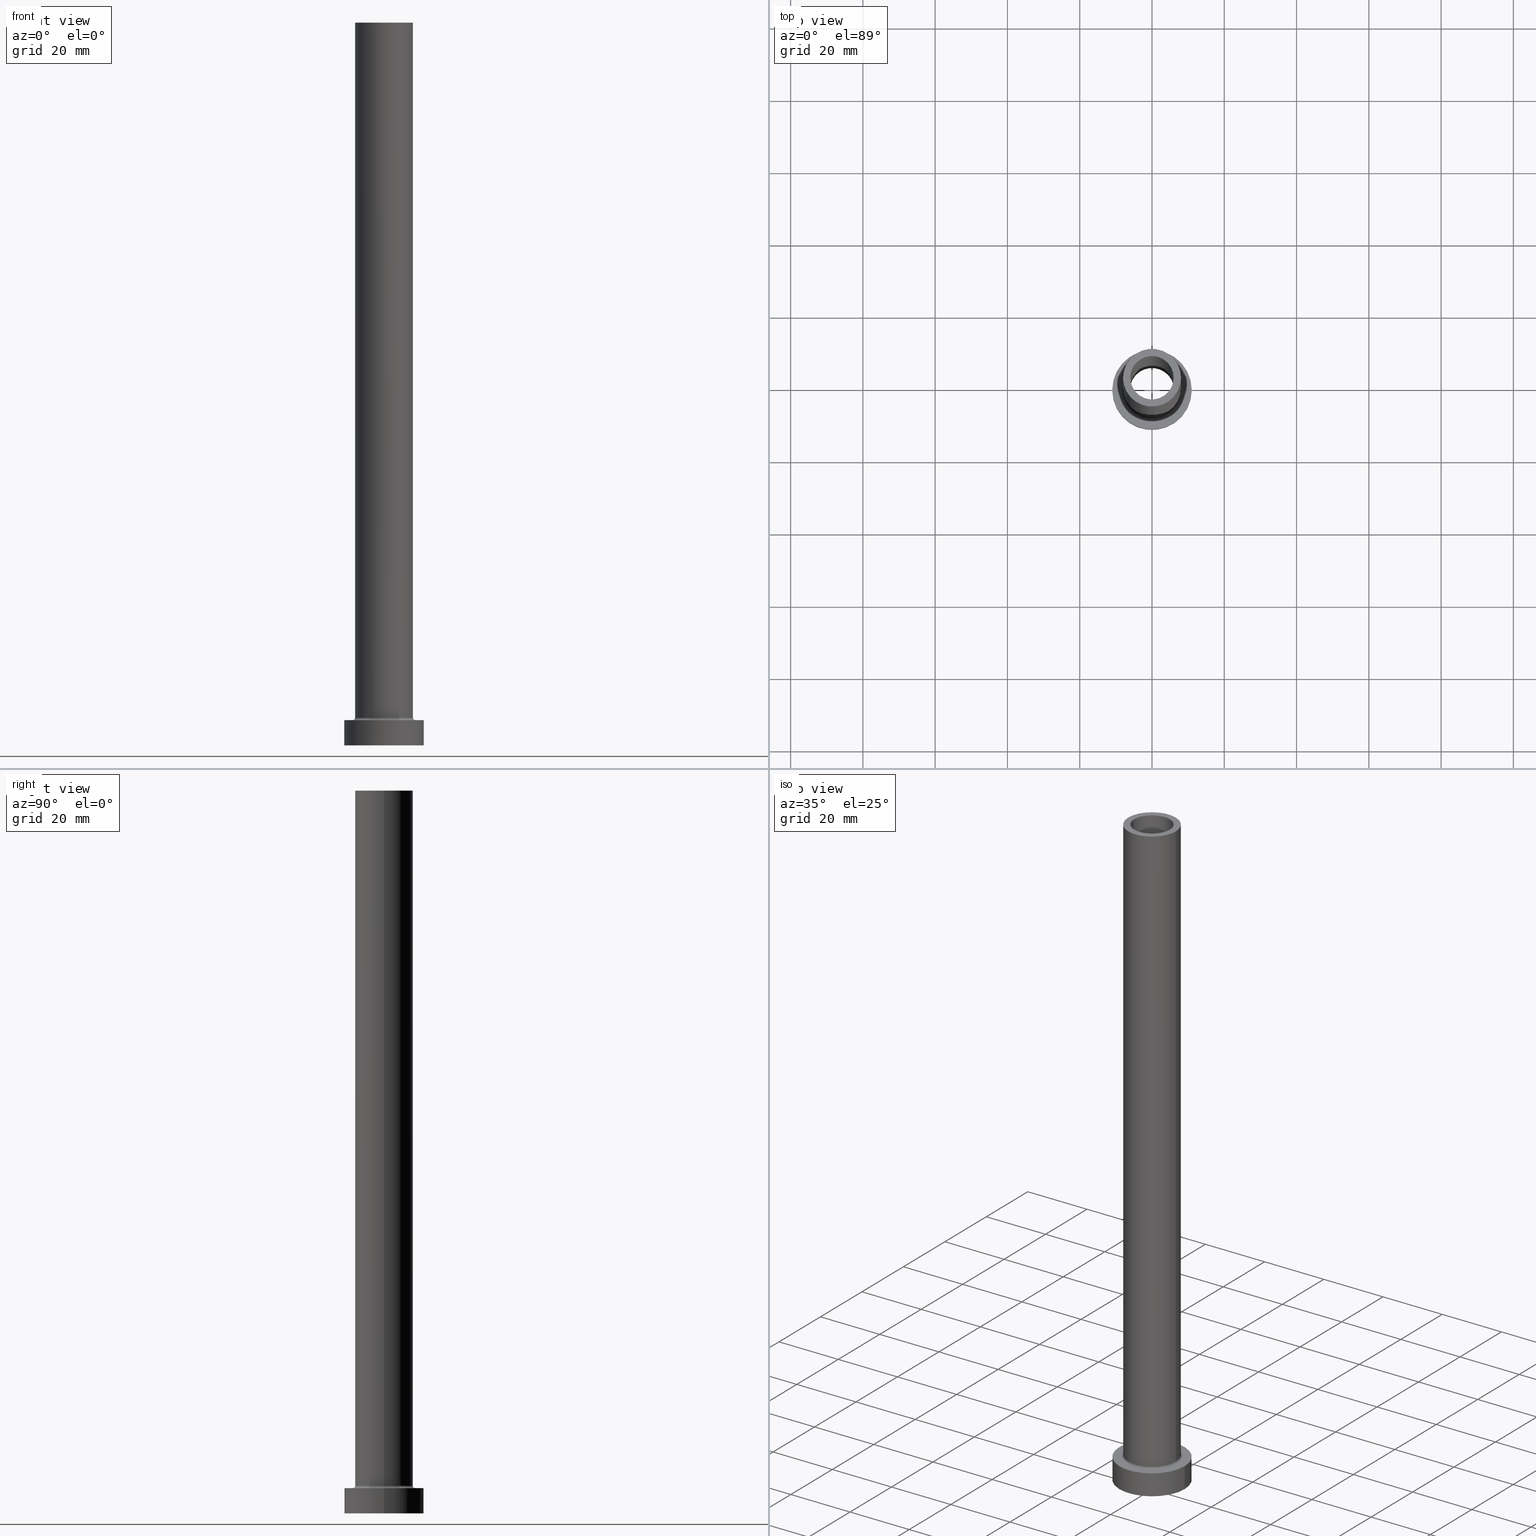
[diagram: canonical four-view strip — front | top / right | iso, engineering-drawing reading convention]
A machine part, canonical four-view strip (front | top / right | iso — engineering-drawing reading convention). The complete STEP part file that produces these views, byte-faithful:
ISO-10303-21;
HEADER;
FILE_DESCRIPTION (( 'STEP AP203' ),
    '1' );
FILE_NAME ('da43.STEP',
    '2023-02-13T09:07:56',
    ( '' ),
    ( '' ),
    'SwSTEP 2.0',
    'SolidWorks 2019',
    '' );
FILE_SCHEMA (( 'CONFIG_CONTROL_DESIGN' ));
ENDSEC;

DATA;
#1 = CARTESIAN_POINT ( 'NONE',  ( -11.00000000000000000, 0.000000000000000000, 7.000000000000000000 ) ) ;
#2 = ADVANCED_FACE ( 'NONE', ( #139 ), #348, .T. ) ;
#3 = CARTESIAN_POINT ( 'NONE',  ( 0.000000000000000000, 0.000000000000000000, 7.700000000000012612 ) ) ;
#4 = COORDINATED_UNIVERSAL_TIME_OFFSET ( 1, 0, .AHEAD. ) ;
#5 = CARTESIAN_POINT ( 'NONE',  ( 6.000000000000000888, 7.347880794884119736E-16, 200.0000000000000000 ) ) ;
#6 = APPROVAL_ROLE ( '' ) ;
#7 = CYLINDRICAL_SURFACE ( 'NONE', #117, 6.000000000000000888 ) ;
#8 = APPROVAL ( #64, 'NEUR�EN�' ) ;
#9 = CARTESIAN_POINT ( 'NONE',  ( 6.000000000000000888, 7.347880794884119736E-16, 155.0000000000000284 ) ) ;
#10 = AXIS2_PLACEMENT_3D ( 'NONE', #72, #361, #292 ) ;
#11 = AXIS2_PLACEMENT_3D ( 'NONE', #347, #179, #94 ) ;
#12 = DIRECTION ( 'NONE',  ( 1.000000000000000000, 0.000000000000000000, 0.000000000000000000 ) ) ;
#13 = ORIENTED_EDGE ( 'NONE', *, *, #88, .T. ) ;
#14 = DIRECTION ( 'NONE',  ( 0.000000000000000000, 0.000000000000000000, -1.000000000000000000 ) ) ;
#15 = ORIENTED_EDGE ( 'NONE', *, *, #146, .F. ) ;
#16 = CARTESIAN_POINT ( 'NONE',  ( 8.000000000000000000, 9.797174393178825657E-16, 200.0000000000000000 ) ) ;
#17 = ORIENTED_EDGE ( 'NONE', *, *, #107, .F. ) ;
#18 = DIRECTION ( 'NONE',  ( 1.000000000000000000, 0.000000000000000000, 0.000000000000000000 ) ) ;
#19 = VERTEX_POINT ( 'NONE', #461 ) ;
#20 = FACE_OUTER_BOUND ( 'NONE', #205, .T. ) ;
#21 = VERTEX_POINT ( 'NONE', #106 ) ;
#22 = CC_DESIGN_DATE_AND_TIME_ASSIGNMENT ( #71, #327, ( #395 ) ) ;
#23 = ORIENTED_EDGE ( 'NONE', *, *, #398, .T. ) ;
#24 = DATE_TIME_ROLE ( 'creation_date' ) ;
#25 = AXIS2_PLACEMENT_3D ( 'NONE', #50, #340, #445 ) ;
#26 = FACE_OUTER_BOUND ( 'NONE', #166, .T. ) ;
#27 = CARTESIAN_POINT ( 'NONE',  ( 0.000000000000000000, 0.000000000000000000, 7.700000000000012612 ) ) ;
#28 = ORIENTED_EDGE ( 'NONE', *, *, #398, .F. ) ;
#29 = DIRECTION ( 'NONE',  ( 0.000000000000000000, 0.000000000000000000, 1.000000000000000000 ) ) ;
#30 = ORIENTED_EDGE ( 'NONE', *, *, #175, .F. ) ;
#31 = PERSON ( 'NEUR�EN�', 'NEUR�EN�', 'NEUR�EN�', ('NEUR�EN�'), ('NEUR�EN�'), ('NEUR�EN�') ) ;
#32 = CARTESIAN_POINT ( 'NONE',  ( -8.000000000000000000, 0.000000000000000000, 200.0000000000000000 ) ) ;
#33 = ORIENTED_EDGE ( 'NONE', *, *, #321, .T. ) ;
#34 = AXIS2_PLACEMENT_3D ( 'NONE', #227, #270, #12 ) ;
#35 = CARTESIAN_POINT ( 'NONE',  ( 6.150000000000000355, 7.531577814756222064E-16, 172.3948268171890845 ) ) ;
#36 = EDGE_CURVE ( 'NONE', #352, #305, #287, .T. ) ;
#37 = CALENDAR_DATE ( 2023, 13, 2 ) ;
#38 = DIRECTION ( 'NONE',  ( 0.000000000000000000, 0.000000000000000000, -1.000000000000000000 ) ) ;
#39 = CARTESIAN_POINT ( 'NONE',  ( 0.000000000000000000, 0.000000000000000000, 7.000000000000000000 ) ) ;
#40 = AXIS2_PLACEMENT_3D ( 'NONE', #401, #397, #78 ) ;
#41 = EDGE_CURVE ( 'NONE', #333, #233, #411, .T. ) ;
#42 = PLANE ( 'NONE',  #380 ) ;
#43 = CARTESIAN_POINT ( 'NONE',  ( 6.150000000000000355, 7.531577814756222064E-16, 155.0000000000000284 ) ) ;
#44 = DIRECTION ( 'NONE',  ( -1.000000000000000000, 0.000000000000000000, 0.000000000000000000 ) ) ;
#45 = VECTOR ( 'NONE', #159, 1000.000000000000000 ) ;
#46 = DIRECTION ( 'NONE',  ( 1.000000000000000000, 0.000000000000000000, 0.000000000000000000 ) ) ;
#47 = ORIENTED_EDGE ( 'NONE', *, *, #341, .T. ) ;
#48 = CARTESIAN_POINT ( 'NONE',  ( 0.000000000000000000, 0.000000000000000000, 200.0000000000000000 ) ) ;
#49 = ORIENTED_EDGE ( 'NONE', *, *, #341, .F. ) ;
#50 = CARTESIAN_POINT ( 'NONE',  ( 0.000000000000000000, 0.000000000000000000, 155.0000000000000284 ) ) ;
#51 = ORIENTED_EDGE ( 'NONE', *, *, #55, .F. ) ;
#52 = AXIS2_PLACEMENT_3D ( 'NONE', #3, #186, #216 ) ;
#53 = APPROVAL_PERSON_ORGANIZATION ( #204, #215, #317 ) ;
#54 = CARTESIAN_POINT ( 'NONE',  ( -11.00000000000000000, 0.000000000000000000, 7.000000000000000000 ) ) ;
#55 = EDGE_CURVE ( 'NONE', #19, #405, #264, .T. ) ;
#56 = ORIENTED_EDGE ( 'NONE', *, *, #175, .T. ) ;
#57 = DIRECTION ( 'NONE',  ( 1.000000000000000000, 0.000000000000000000, 0.000000000000000000 ) ) ;
#58 = PRODUCT ( 'da43', 'da43', '', ( #417 ) ) ;
#59 = DATE_AND_TIME ( #96, #235 ) ;
#60 = VERTEX_POINT ( 'NONE', #346 ) ;
#61 = APPROVAL_DATE_TIME ( #423, #8 ) ;
#62 = ORIENTED_EDGE ( 'NONE', *, *, #350, .F. ) ;
#63 = EDGE_CURVE ( 'NONE', #443, #123, #115, .T. ) ;
#64 = APPROVAL_STATUS ( 'not_yet_approved' ) ;
#65 = ORIENTED_EDGE ( 'NONE', *, *, #81, .T. ) ;
#66 = ORIENTED_EDGE ( 'NONE', *, *, #365, .F. ) ;
#67 = CIRCLE ( 'NONE', #276, 6.150000000000000355 ) ;
#68 = EDGE_CURVE ( 'NONE', #233, #333, #370, .T. ) ;
#69 = CYLINDRICAL_SURFACE ( 'NONE', #364, 8.000000000000000000 ) ;
#70 =( GEOMETRIC_REPRESENTATION_CONTEXT ( 3 ) GLOBAL_UNCERTAINTY_ASSIGNED_CONTEXT ( ( #158 ) ) GLOBAL_UNIT_ASSIGNED_CONTEXT ( ( #351, #138, #236 ) ) REPRESENTATION_CONTEXT ( 'NONE', 'WORKASPACE' ) );
#71 = DATE_AND_TIME ( #148, #144 ) ;
#72 = CARTESIAN_POINT ( 'NONE',  ( 0.000000000000000000, 0.000000000000000000, 0.000000000000000000 ) ) ;
#73 = DIRECTION ( 'NONE',  ( 1.000000000000000000, 0.000000000000000000, -0.000000000000000000 ) ) ;
#74 = ADVANCED_FACE ( 'NONE', ( #26 ), #393, .F. ) ;
#75 = DIRECTION ( 'NONE',  ( 0.000000000000000000, 0.000000000000000000, 1.000000000000000000 ) ) ;
#76 = CIRCLE ( 'NONE', #458, 0.6999999999999992895 ) ;
#77 = APPROVAL_PERSON_ORGANIZATION ( #285, #8, #309 ) ;
#78 = DIRECTION ( 'NONE',  ( 0.000000000000000000, 0.000000000000000000, -1.000000000000000000 ) ) ;
#79 = FACE_OUTER_BOUND ( 'NONE', #297, .T. ) ;
#80 = CARTESIAN_POINT ( 'NONE',  ( 0.000000000000000000, 0.000000000000000000, 200.0000000000000000 ) ) ;
#81 = EDGE_CURVE ( 'NONE', #446, #438, #339, .T. ) ;
#82 = EDGE_LOOP ( 'NONE', ( #197, #375 ) ) ;
#83 = AXIS2_PLACEMENT_3D ( 'NONE', #377, #127, #46 ) ;
#84 = FACE_OUTER_BOUND ( 'NONE', #275, .T. ) ;
#85 = EDGE_LOOP ( 'NONE', ( #56, #47 ) ) ;
#86 = CARTESIAN_POINT ( 'NONE',  ( -6.150000000000000355, 0.000000000000000000, 155.0000000000000284 ) ) ;
#87 = ORIENTED_EDGE ( 'NONE', *, *, #321, .F. ) ;
#88 = EDGE_CURVE ( 'NONE', #155, #305, #91, .T. ) ;
#89 = AXIS2_PLACEMENT_3D ( 'NONE', #207, #250, #109 ) ;
#90 = CARTESIAN_POINT ( 'NONE',  ( 0.000000000000000000, 0.000000000000000000, 7.000000000000000000 ) ) ;
#91 = CIRCLE ( 'NONE', #447, 11.00000000000000000 ) ;
#92 = EDGE_LOOP ( 'NONE', ( #388, #456, #23, #407 ) ) ;
#93 = ADVANCED_BREP_SHAPE_REPRESENTATION ( 'da43', ( #454, #284 ), #70 ) ;
#94 = DIRECTION ( 'NONE',  ( -1.000000000000000000, 0.000000000000000000, 0.000000000000000000 ) ) ;
#95 = ORIENTED_EDGE ( 'NONE', *, *, #88, .F. ) ;
#96 = CALENDAR_DATE ( 2023, 13, 2 ) ;
#97 = CARTESIAN_POINT ( 'NONE',  ( 0.000000000000000000, 0.000000000000000000, 155.0000000000000284 ) ) ;
#98 = CARTESIAN_POINT ( 'NONE',  ( 11.00000000000000000, 1.347111479062088405E-15, 7.000000000000000000 ) ) ;
#99 = EDGE_CURVE ( 'NONE', #345, #155, #242, .T. ) ;
#100 = AXIS2_PLACEMENT_3D ( 'NONE', #97, #240, #385 ) ;
#101 = AXIS2_PLACEMENT_3D ( 'NONE', #147, #75, #214 ) ;
#102 = COORDINATED_UNIVERSAL_TIME_OFFSET ( 1, 0, .AHEAD. ) ;
#103 = DIRECTION ( 'NONE',  ( 0.000000000000000000, 0.000000000000000000, 1.000000000000000000 ) ) ;
#104 = PERSON_AND_ORGANIZATION ( #31, #111 ) ;
#105 = APPLICATION_CONTEXT ( 'configuration controlled 3d designs of mechanical parts and assemblies' ) ;
#106 = CARTESIAN_POINT ( 'NONE',  ( -8.000000000000000000, 0.000000000000000000, 7.700000000000012612 ) ) ;
#107 = EDGE_CURVE ( 'NONE', #336, #19, #251, .T. ) ;
#108 = PERSON_AND_ORGANIZATION_ROLE ( 'classification_officer' ) ;
#109 = DIRECTION ( 'NONE',  ( 1.000000000000000000, 0.000000000000000000, 0.000000000000000000 ) ) ;
#110 = DIRECTION ( 'NONE',  ( -1.000000000000000000, 0.000000000000000000, 0.000000000000000000 ) ) ;
#111 = ORGANIZATION ( 'NEUR�EN�', 'NEUR�EN�', '' ) ;
#112 = DATE_AND_TIME ( #37, #178 ) ;
#113 = CARTESIAN_POINT ( 'NONE',  ( 0.000000000000000000, 0.000000000000000000, 7.000000000000000000 ) ) ;
#114 = CARTESIAN_POINT ( 'NONE',  ( 0.000000000000000000, 0.000000000000000000, 200.0000000000000000 ) ) ;
#115 = CIRCLE ( 'NONE', #379, 6.000000000000000888 ) ;
#116 = CARTESIAN_POINT ( 'NONE',  ( 0.000000000000000000, 0.000000000000000000, 0.000000000000000000 ) ) ;
#117 = AXIS2_PLACEMENT_3D ( 'NONE', #114, #219, #366 ) ;
#118 = PLANE ( 'NONE',  #101 ) ;
#119 = EDGE_CURVE ( 'NONE', #123, #60, #149, .T. ) ;
#120 = CARTESIAN_POINT ( 'NONE',  ( 8.000000000000000000, 9.797174393178825657E-16, 7.700000000000012612 ) ) ;
#121 = ORIENTED_EDGE ( 'NONE', *, *, #146, .T. ) ;
#122 = CARTESIAN_POINT ( 'NONE',  ( 11.00000000000000000, 1.347111479062088405E-15, 7.000000000000000000 ) ) ;
#123 = VERTEX_POINT ( 'NONE', #213 ) ;
#124 = CIRCLE ( 'NONE', #34, 8.699999999999999289 ) ;
#125 = CARTESIAN_POINT ( 'NONE',  ( -8.000000000000000000, 0.000000000000000000, 200.0000000000000000 ) ) ;
#126 = ORIENTED_EDGE ( 'NONE', *, *, #376, .T. ) ;
#127 = DIRECTION ( 'NONE',  ( 0.000000000000000000, 0.000000000000000000, 1.000000000000000000 ) ) ;
#128 = ORIENTED_EDGE ( 'NONE', *, *, #243, .F. ) ;
#129 = EDGE_LOOP ( 'NONE', ( #286, #157, #30, #211 ) ) ;
#130 = LOCAL_TIME ( 10, 7, 56.00000000000000000, #241 ) ;
#131 = DIRECTION ( 'NONE',  ( 0.000000000000000000, 0.000000000000000000, 1.000000000000000000 ) ) ;
#132 = DIRECTION ( 'NONE',  ( -1.000000000000000000, 0.000000000000000000, 0.000000000000000000 ) ) ;
#133 = ADVANCED_FACE ( 'NONE', ( #328, #290 ), #118, .F. ) ;
#134 = CARTESIAN_POINT ( 'NONE',  ( 0.000000000000000000, 0.000000000000000000, 0.000000000000000000 ) ) ;
#135 = DIRECTION ( 'NONE',  ( 1.000000000000000000, 0.000000000000000000, 0.000000000000000000 ) ) ;
#136 = DIRECTION ( 'NONE',  ( 1.000000000000000000, 0.000000000000000000, 0.000000000000000000 ) ) ;
#137 = AXIS2_PLACEMENT_3D ( 'NONE', #90, #435, #437 ) ;
#138 =( NAMED_UNIT ( * ) PLANE_ANGLE_UNIT ( ) SI_UNIT ( $, .RADIAN. ) );
#139 = FACE_OUTER_BOUND ( 'NONE', #167, .T. ) ;
#140 = EDGE_LOOP ( 'NONE', ( #303, #28 ) ) ;
#141 = COORDINATED_UNIVERSAL_TIME_OFFSET ( 1, 0, .AHEAD. ) ;
#142 = FACE_BOUND ( 'NONE', #82, .T. ) ;
#143 = FACE_OUTER_BOUND ( 'NONE', #225, .T. ) ;
#144 = LOCAL_TIME ( 10, 7, 56.00000000000000000, #141 ) ;
#145 = SECURITY_CLASSIFICATION_LEVEL ( 'unclassified' ) ;
#146 = EDGE_CURVE ( 'NONE', #305, #155, #363, .T. ) ;
#147 = CARTESIAN_POINT ( 'NONE',  ( 0.000000000000000000, 0.000000000000000000, 0.000000000000000000 ) ) ;
#148 = CALENDAR_DATE ( 2023, 13, 2 ) ;
#149 = LINE ( 'NONE', #322, #412 ) ;
#150 = DIRECTION ( 'NONE',  ( 0.000000000000000000, 0.000000000000000000, 1.000000000000000000 ) ) ;
#151 = AXIS2_PLACEMENT_3D ( 'NONE', #288, #150, #429 ) ;
#152 = CIRCLE ( 'NONE', #220, 8.000000000000000000 ) ;
#153 = ADVANCED_FACE ( 'NONE', ( #142, #295 ), #431, .T. ) ;
#154 = CARTESIAN_POINT ( 'NONE',  ( 0.000000000000000000, 0.000000000000000000, 172.3948268171890845 ) ) ;
#155 = VERTEX_POINT ( 'NONE', #430 ) ;
#156 = CYLINDRICAL_SURFACE ( 'NONE', #218, 6.150000000000000355 ) ;
#157 = ORIENTED_EDGE ( 'NONE', *, *, #203, .T. ) ;
#158 = UNCERTAINTY_MEASURE_WITH_UNIT (LENGTH_MEASURE( 1.000000000000000082E-05 ), #351, 'distance_accuracy_value', 'NONE');
#159 = DIRECTION ( 'NONE',  ( -0.000000000000000000, -0.000000000000000000, -1.000000000000000000 ) ) ;
#160 = ADVANCED_FACE ( 'NONE', ( #426 ), #69, .T. ) ;
#161 = ORIENTED_EDGE ( 'NONE', *, *, #221, .T. ) ;
#162 = AXIS2_PLACEMENT_3D ( 'NONE', #396, #222, #253 ) ;
#163 = LINE ( 'NONE', #125, #349 ) ;
#164 = ORIENTED_EDGE ( 'NONE', *, *, #266, .F. ) ;
#165 = FACE_OUTER_BOUND ( 'NONE', #129, .T. ) ;
#166 = EDGE_LOOP ( 'NONE', ( #373, #269, #310, #263 ) ) ;
#167 = EDGE_LOOP ( 'NONE', ( #271, #357, #436, #378 ) ) ;
#168 = CIRCLE ( 'NONE', #52, 8.000000000000000000 ) ;
#169 = EDGE_CURVE ( 'NONE', #414, #267, #67, .T. ) ;
#170 = FACE_OUTER_BOUND ( 'NONE', #278, .T. ) ;
#171 = DIRECTION ( 'NONE',  ( -0.000000000000000000, -0.000000000000000000, -1.000000000000000000 ) ) ;
#172 = PERSON_AND_ORGANIZATION ( #31, #111 ) ;
#173 = CARTESIAN_POINT ( 'NONE',  ( 0.000000000000000000, 0.000000000000000000, 200.0000000000000000 ) ) ;
#174 = DATE_AND_TIME ( #353, #130 ) ;
#175 = EDGE_CURVE ( 'NONE', #60, #238, #302, .T. ) ;
#176 = EDGE_LOOP ( 'NONE', ( #164, #209, #121, #300 ) ) ;
#177 = CIRCLE ( 'NONE', #234, 11.00000000000000000 ) ;
#178 = LOCAL_TIME ( 10, 7, 56.00000000000000000, #4 ) ;
#179 = DIRECTION ( 'NONE',  ( -0.000000000000000000, -0.000000000000000000, -1.000000000000000000 ) ) ;
#180 = EDGE_LOOP ( 'NONE', ( #95, #15 ) ) ;
#181 = DIRECTION ( 'NONE',  ( -0.000000000000000000, -0.000000000000000000, -1.000000000000000000 ) ) ;
#182 = DIRECTION ( 'NONE',  ( 1.000000000000000000, 0.000000000000000000, 0.000000000000000000 ) ) ;
#183 = CC_DESIGN_PERSON_AND_ORGANIZATION_ASSIGNMENT ( #104, #246, ( #331 ) ) ;
#184 = DIRECTION ( 'NONE',  ( 0.000000000000000000, 0.000000000000000000, 1.000000000000000000 ) ) ;
#185 = APPROVAL_PERSON_ORGANIZATION ( #217, #402, #6 ) ;
#186 = DIRECTION ( 'NONE',  ( 0.000000000000000000, 0.000000000000000000, 1.000000000000000000 ) ) ;
#187 = CARTESIAN_POINT ( 'NONE',  ( 0.000000000000000000, 0.000000000000000000, 200.0000000000000000 ) ) ;
#188 = EDGE_CURVE ( 'NONE', #21, #405, #76, .T. ) ;
#189 = DIRECTION ( 'NONE',  ( 1.000000000000000000, 0.000000000000000000, 0.000000000000000000 ) ) ;
#190 = ORIENTED_EDGE ( 'NONE', *, *, #63, .T. ) ;
#191 = CC_DESIGN_APPROVAL ( #402, ( #395 ) ) ;
#192 = DIRECTION ( 'NONE',  ( -1.000000000000000000, 0.000000000000000000, 0.000000000000000000 ) ) ;
#193 = ORIENTED_EDGE ( 'NONE', *, *, #41, .F. ) ;
#194 = LINE ( 'NONE', #381, #358 ) ;
#195 = EDGE_LOOP ( 'NONE', ( #202, #126, #161, #66 ) ) ;
#196 = DIRECTION ( 'NONE',  ( 0.000000000000000000, 0.000000000000000000, 1.000000000000000000 ) ) ;
#197 = ORIENTED_EDGE ( 'NONE', *, *, #272, .F. ) ;
#198 = CIRCLE ( 'NONE', #226, 6.150000000000000355 ) ;
#199 = CYLINDRICAL_SURFACE ( 'NONE', #451, 6.150000000000000355 ) ;
#200 = EDGE_LOOP ( 'NONE', ( #410, #383 ) ) ;
#201 = APPLICATION_PROTOCOL_DEFINITION ( 'international standard', 'config_control_design', 1994, #105 ) ;
#202 = ORIENTED_EDGE ( 'NONE', *, *, #81, .F. ) ;
#203 = EDGE_CURVE ( 'NONE', #443, #238, #360, .T. ) ;
#204 = PERSON_AND_ORGANIZATION ( #31, #111 ) ;
#205 = EDGE_LOOP ( 'NONE', ( #193, #282 ) ) ;
#206 = CARTESIAN_POINT ( 'NONE',  ( 8.000000000000000000, 9.797174393178825657E-16, 200.0000000000000000 ) ) ;
#207 = CARTESIAN_POINT ( 'NONE',  ( 0.000000000000000000, 0.000000000000000000, 155.0000000000000284 ) ) ;
#208 = PERSON_AND_ORGANIZATION ( #31, #111 ) ;
#209 = ORIENTED_EDGE ( 'NONE', *, *, #36, .T. ) ;
#210 = PERSON_AND_ORGANIZATION_ROLE ( 'design_supplier' ) ;
#211 = ORIENTED_EDGE ( 'NONE', *, *, #119, .F. ) ;
#212 = AXIS2_PLACEMENT_3D ( 'NONE', #316, #103, #245 ) ;
#213 = CARTESIAN_POINT ( 'NONE',  ( -6.000000000000000888, 0.000000000000000000, 200.0000000000000000 ) ) ;
#214 = DIRECTION ( 'NONE',  ( 1.000000000000000000, 0.000000000000000000, -0.000000000000000000 ) ) ;
#215 = APPROVAL ( #312, 'NEUR�EN�' ) ;
#216 = DIRECTION ( 'NONE',  ( 1.000000000000000000, 0.000000000000000000, 0.000000000000000000 ) ) ;
#217 = PERSON_AND_ORGANIZATION ( #31, #111 ) ;
#218 = AXIS2_PLACEMENT_3D ( 'NONE', #223, #14, #44 ) ;
#219 = DIRECTION ( 'NONE',  ( 0.000000000000000000, 0.000000000000000000, -1.000000000000000000 ) ) ;
#220 = AXIS2_PLACEMENT_3D ( 'NONE', #307, #404, #299 ) ;
#221 = EDGE_CURVE ( 'NONE', #336, #21, #168, .T. ) ;
#222 = DIRECTION ( 'NONE',  ( 0.000000000000000000, 0.000000000000000000, 1.000000000000000000 ) ) ;
#223 = CARTESIAN_POINT ( 'NONE',  ( 0.000000000000000000, 0.000000000000000000, 172.3948268171890845 ) ) ;
#224 = LINE ( 'NONE', #16, #45 ) ;
#225 = EDGE_LOOP ( 'NONE', ( #452, #190, #230, #49 ) ) ;
#226 = AXIS2_PLACEMENT_3D ( 'NONE', #304, #442, #372 ) ;
#227 = CARTESIAN_POINT ( 'NONE',  ( 0.000000000000000000, 0.000000000000000000, 7.000000000000000000 ) ) ;
#228 = ORIENTED_EDGE ( 'NONE', *, *, #36, .F. ) ;
#229 = CARTESIAN_POINT ( 'NONE',  ( 6.150000000000000355, 7.531577814756222064E-16, 0.000000000000000000 ) ) ;
#230 = ORIENTED_EDGE ( 'NONE', *, *, #119, .T. ) ;
#231 = AXIS2_PLACEMENT_3D ( 'NONE', #173, #424, #132 ) ;
#232 = DIRECTION ( 'NONE',  ( 0.000000000000000000, 0.000000000000000000, 1.000000000000000000 ) ) ;
#233 = VERTEX_POINT ( 'NONE', #43 ) ;
#234 = AXIS2_PLACEMENT_3D ( 'NONE', #39, #184, #326 ) ;
#235 = LOCAL_TIME ( 10, 7, 56.00000000000000000, #450 ) ;
#236 =( NAMED_UNIT ( * ) SI_UNIT ( $, .STERADIAN. ) SOLID_ANGLE_UNIT ( ) );
#237 = PRODUCT_RELATED_PRODUCT_CATEGORY ( 'detail', '', ( #58 ) ) ;
#238 = VERTEX_POINT ( 'NONE', #9 ) ;
#239 = PERSON_AND_ORGANIZATION_ROLE ( 'creator' ) ;
#240 = DIRECTION ( 'NONE',  ( 0.000000000000000000, 0.000000000000000000, 1.000000000000000000 ) ) ;
#241 = COORDINATED_UNIVERSAL_TIME_OFFSET ( 1, 0, .AHEAD. ) ;
#242 = LINE ( 'NONE', #1, #362 ) ;
#243 = EDGE_CURVE ( 'NONE', #233, #267, #359, .T. ) ;
#244 = CARTESIAN_POINT ( 'NONE',  ( 6.000000000000000888, 7.347880794884119736E-16, 200.0000000000000000 ) ) ;
#245 = DIRECTION ( 'NONE',  ( 1.000000000000000000, 0.000000000000000000, 0.000000000000000000 ) ) ;
#246 = PERSON_AND_ORGANIZATION_ROLE ( 'creator' ) ;
#247 = CARTESIAN_POINT ( 'NONE',  ( 0.000000000000000000, 0.000000000000000000, 200.0000000000000000 ) ) ;
#248 = APPLICATION_CONTEXT ( 'configuration controlled 3d designs of mechanical parts and assemblies' ) ;
#249 = APPROVAL_STATUS ( 'not_yet_approved' ) ;
#250 = DIRECTION ( 'NONE',  ( 0.000000000000000000, 0.000000000000000000, 1.000000000000000000 ) ) ;
#251 = CIRCLE ( 'NONE', #40, 0.7000000000000000666 ) ;
#252 = ADVANCED_FACE ( 'NONE', ( #143 ), #7, .F. ) ;
#253 = DIRECTION ( 'NONE',  ( 1.000000000000000000, 0.000000000000000000, 0.000000000000000000 ) ) ;
#254 = PERSON_AND_ORGANIZATION ( #31, #111 ) ;
#255 = DIRECTION ( 'NONE',  ( 0.000000000000000000, 0.000000000000000000, 1.000000000000000000 ) ) ;
#256 = DIRECTION ( 'NONE',  ( 0.000000000000000000, 0.000000000000000000, -1.000000000000000000 ) ) ;
#257 = ADVANCED_FACE ( 'NONE', ( #289, #260 ), #42, .T. ) ;
#258 = VECTOR ( 'NONE', #38, 1000.000000000000000 ) ;
#259 = AXIS2_PLACEMENT_3D ( 'NONE', #27, #29, #135 ) ;
#260 = FACE_OUTER_BOUND ( 'NONE', #384, .T. ) ;
#261 = CARTESIAN_POINT ( 'NONE',  ( -8.699999999999999289, 1.065442715258197248E-15, 7.000000000000006217 ) ) ;
#262 = CYLINDRICAL_SURFACE ( 'NONE', #137, 11.00000000000000000 ) ;
#263 = ORIENTED_EDGE ( 'NONE', *, *, #334, .F. ) ;
#264 = CIRCLE ( 'NONE', #354, 8.699999999999999289 ) ;
#265 = DIRECTION ( 'NONE',  ( -1.000000000000000000, 0.000000000000000000, 0.000000000000000000 ) ) ;
#266 = EDGE_CURVE ( 'NONE', #352, #345, #177, .T. ) ;
#267 = VERTEX_POINT ( 'NONE', #229 ) ;
#268 = CYLINDRICAL_SURFACE ( 'NONE', #421, 6.000000000000000888 ) ;
#269 = ORIENTED_EDGE ( 'NONE', *, *, #221, .F. ) ;
#270 = DIRECTION ( 'NONE',  ( -0.000000000000000000, -0.000000000000000000, -1.000000000000000000 ) ) ;
#271 = ORIENTED_EDGE ( 'NONE', *, *, #376, .F. ) ;
#272 = EDGE_CURVE ( 'NONE', #123, #443, #294, .T. ) ;
#273 = AXIS2_PLACEMENT_3D ( 'NONE', #392, #313, #453 ) ;
#274 = PERSON_AND_ORGANIZATION_ROLE ( 'design_owner' ) ;
#275 = EDGE_LOOP ( 'NONE', ( #228, #87, #320, #13 ) ) ;
#276 = AXIS2_PLACEMENT_3D ( 'NONE', #116, #181, #182 ) ;
#277 = AXIS2_PLACEMENT_3D ( 'NONE', #80, #374, #18 ) ;
#278 = EDGE_LOOP ( 'NONE', ( #62, #308, #51, #17 ) ) ;
#279 = DIRECTION ( 'NONE',  ( 1.000000000000000000, 0.000000000000000000, 0.000000000000000000 ) ) ;
#280 = DIRECTION ( 'NONE',  ( 0.000000000000000000, 0.000000000000000000, 1.000000000000000000 ) ) ;
#281 = CALENDAR_DATE ( 2023, 13, 2 ) ;
#282 = ORIENTED_EDGE ( 'NONE', *, *, #68, .F. ) ;
#283 = ADVANCED_FACE ( 'NONE', ( #165 ), #268, .F. ) ;
#284 = AXIS2_PLACEMENT_3D ( 'NONE', #319, #131, #279 ) ;
#285 = PERSON_AND_ORGANIZATION ( #31, #111 ) ;
#286 = ORIENTED_EDGE ( 'NONE', *, *, #272, .T. ) ;
#287 = LINE ( 'NONE', #98, #293 ) ;
#288 = CARTESIAN_POINT ( 'NONE',  ( 0.000000000000000000, 0.000000000000000000, 200.0000000000000000 ) ) ;
#289 = FACE_BOUND ( 'NONE', #200, .T. ) ;
#290 = FACE_OUTER_BOUND ( 'NONE', #180, .T. ) ;
#291 = APPROVAL_DATE_TIME ( #112, #402 ) ;
#292 = DIRECTION ( 'NONE',  ( 1.000000000000000000, 0.000000000000000000, 0.000000000000000000 ) ) ;
#293 = VECTOR ( 'NONE', #425, 1000.000000000000000 ) ;
#294 = CIRCLE ( 'NONE', #330, 6.000000000000000888 ) ;
#295 = FACE_OUTER_BOUND ( 'NONE', #419, .T. ) ;
#296 = DIRECTION ( 'NONE',  ( 1.000000000000000000, 0.000000000000000000, 0.000000000000000000 ) ) ;
#297 = EDGE_LOOP ( 'NONE', ( #128, #459, #338, #343 ) ) ;
#298 = CC_DESIGN_PERSON_AND_ORGANIZATION_ASSIGNMENT ( #208, #239, ( #386 ) ) ;
#299 = DIRECTION ( 'NONE',  ( 1.000000000000000000, 0.000000000000000000, 0.000000000000000000 ) ) ;
#300 = ORIENTED_EDGE ( 'NONE', *, *, #99, .F. ) ;
#301 = CARTESIAN_POINT ( 'NONE',  ( -6.150000000000000355, 0.000000000000000000, 0.000000000000000000 ) ) ;
#302 = CIRCLE ( 'NONE', #162, 6.000000000000000888 ) ;
#303 = ORIENTED_EDGE ( 'NONE', *, *, #169, .F. ) ;
#304 = CARTESIAN_POINT ( 'NONE',  ( 0.000000000000000000, 0.000000000000000000, 0.000000000000000000 ) ) ;
#305 = VERTEX_POINT ( 'NONE', #409 ) ;
#306 = EDGE_CURVE ( 'NONE', #333, #414, #194, .T. ) ;
#307 = CARTESIAN_POINT ( 'NONE',  ( 0.000000000000000000, 0.000000000000000000, 7.700000000000012612 ) ) ;
#308 = ORIENTED_EDGE ( 'NONE', *, *, #188, .T. ) ;
#309 = APPROVAL_ROLE ( '' ) ;
#310 = ORIENTED_EDGE ( 'NONE', *, *, #107, .T. ) ;
#311 = AXIS2_PLACEMENT_3D ( 'NONE', #337, #232, #189 ) ;
#312 = APPROVAL_STATUS ( 'not_yet_approved' ) ;
#313 = DIRECTION ( 'NONE',  ( 0.000000000000000000, 0.000000000000000000, 1.000000000000000000 ) ) ;
#314 = APPLICATION_PROTOCOL_DEFINITION ( 'international standard', 'config_control_design', 1994, #248 ) ;
#315 = ADVANCED_FACE ( 'NONE', ( #84 ), #262, .T. ) ;
#316 = CARTESIAN_POINT ( 'NONE',  ( 0.000000000000000000, 0.000000000000000000, 7.700000000000012612 ) ) ;
#317 = APPROVAL_ROLE ( '' ) ;
#318 = ORIENTED_EDGE ( 'NONE', *, *, #356, .T. ) ;
#319 = CARTESIAN_POINT ( 'NONE',  ( 0.000000000000000000, 0.000000000000000000, 0.000000000000000000 ) ) ;
#320 = ORIENTED_EDGE ( 'NONE', *, *, #99, .T. ) ;
#321 = EDGE_CURVE ( 'NONE', #345, #352, #342, .T. ) ;
#322 = CARTESIAN_POINT ( 'NONE',  ( -6.000000000000000888, 0.000000000000000000, 200.0000000000000000 ) ) ;
#323 = DIRECTION ( 'NONE',  ( 1.224646799147353207E-16, 1.000000000000000000, -0.000000000000000000 ) ) ;
#324 = CC_DESIGN_APPROVAL ( #215, ( #331 ) ) ;
#325 = SHAPE_DEFINITION_REPRESENTATION ( #444, #93 ) ;
#326 = DIRECTION ( 'NONE',  ( 1.000000000000000000, 0.000000000000000000, 0.000000000000000000 ) ) ;
#327 = DATE_TIME_ROLE ( 'classification_date' ) ;
#328 = FACE_BOUND ( 'NONE', #140, .T. ) ;
#329 = DIRECTION ( 'NONE',  ( -0.000000000000000000, -0.000000000000000000, -1.000000000000000000 ) ) ;
#330 = AXIS2_PLACEMENT_3D ( 'NONE', #48, #196, #296 ) ;
#331 = PRODUCT_DEFINITION_FORMATION_WITH_SPECIFIED_SOURCE ( 'LIBOVOLN�', '', #58, .NOT_KNOWN. ) ;
#332 = CARTESIAN_POINT ( 'NONE',  ( 0.000000000000000000, 0.000000000000000000, 200.0000000000000000 ) ) ;
#333 = VERTEX_POINT ( 'NONE', #86 ) ;
#334 = EDGE_CURVE ( 'NONE', #405, #19, #124, .T. ) ;
#335 = PLANE ( 'NONE',  #25 ) ;
#336 = VERTEX_POINT ( 'NONE', #120 ) ;
#337 = CARTESIAN_POINT ( 'NONE',  ( 0.000000000000000000, 0.000000000000000000, 7.000000000000000000 ) ) ;
#338 = ORIENTED_EDGE ( 'NONE', *, *, #306, .T. ) ;
#339 = CIRCLE ( 'NONE', #273, 8.000000000000000000 ) ;
#340 = DIRECTION ( 'NONE',  ( 0.000000000000000000, 0.000000000000000000, 1.000000000000000000 ) ) ;
#341 = EDGE_CURVE ( 'NONE', #238, #60, #413, .T. ) ;
#342 = CIRCLE ( 'NONE', #311, 11.00000000000000000 ) ;
#343 = ORIENTED_EDGE ( 'NONE', *, *, #169, .T. ) ;
#344 = DIRECTION ( 'NONE',  ( 0.000000000000000000, 0.000000000000000000, -1.000000000000000000 ) ) ;
#345 = VERTEX_POINT ( 'NONE', #54 ) ;
#346 = CARTESIAN_POINT ( 'NONE',  ( -6.000000000000000888, 0.000000000000000000, 155.0000000000000284 ) ) ;
#347 = CARTESIAN_POINT ( 'NONE',  ( 0.000000000000000000, 0.000000000000000000, 7.000000000000000000 ) ) ;
#348 = CYLINDRICAL_SURFACE ( 'NONE', #231, 8.000000000000000000 ) ;
#349 = VECTOR ( 'NONE', #408, 1000.000000000000000 ) ;
#350 = EDGE_CURVE ( 'NONE', #21, #336, #152, .T. ) ;
#351 =( LENGTH_UNIT ( ) NAMED_UNIT ( * ) SI_UNIT ( .MILLI., .METRE. ) );
#352 = VERTEX_POINT ( 'NONE', #122 ) ;
#353 = CALENDAR_DATE ( 2023, 13, 2 ) ;
#354 = AXIS2_PLACEMENT_3D ( 'NONE', #416, #171, #57 ) ;
#355 = CYLINDRICAL_SURFACE ( 'NONE', #11, 11.00000000000000000 ) ;
#356 = EDGE_CURVE ( 'NONE', #438, #446, #420, .T. ) ;
#357 = ORIENTED_EDGE ( 'NONE', *, *, #356, .F. ) ;
#358 = VECTOR ( 'NONE', #406, 1000.000000000000000 ) ;
#359 = LINE ( 'NONE', #35, #427 ) ;
#360 = LINE ( 'NONE', #5, #258 ) ;
#361 = DIRECTION ( 'NONE',  ( 0.000000000000000000, 0.000000000000000000, 1.000000000000000000 ) ) ;
#362 = VECTOR ( 'NONE', #434, 1000.000000000000000 ) ;
#363 = CIRCLE ( 'NONE', #10, 11.00000000000000000 ) ;
#364 = AXIS2_PLACEMENT_3D ( 'NONE', #187, #329, #110 ) ;
#365 = EDGE_CURVE ( 'NONE', #438, #21, #163, .T. ) ;
#366 = DIRECTION ( 'NONE',  ( -1.000000000000000000, 0.000000000000000000, 0.000000000000000000 ) ) ;
#367 = CARTESIAN_POINT ( 'NONE',  ( -8.699999999999999289, 1.065442715258197248E-15, 7.700000000000012612 ) ) ;
#368 = FACE_OUTER_BOUND ( 'NONE', #92, .T. ) ;
#369 = ADVANCED_FACE ( 'NONE', ( #79 ), #199, .F. ) ;
#370 = CIRCLE ( 'NONE', #100, 6.150000000000000355 ) ;
#371 = CC_DESIGN_APPROVAL ( #8, ( #386 ) ) ;
#372 = DIRECTION ( 'NONE',  ( 1.000000000000000000, 0.000000000000000000, 0.000000000000000000 ) ) ;
#373 = ORIENTED_EDGE ( 'NONE', *, *, #188, .F. ) ;
#374 = DIRECTION ( 'NONE',  ( 0.000000000000000000, 0.000000000000000000, 1.000000000000000000 ) ) ;
#375 = ORIENTED_EDGE ( 'NONE', *, *, #63, .F. ) ;
#376 = EDGE_CURVE ( 'NONE', #446, #336, #224, .T. ) ;
#377 = CARTESIAN_POINT ( 'NONE',  ( 0.000000000000000000, 0.000000000000000000, 155.0000000000000284 ) ) ;
#378 = ORIENTED_EDGE ( 'NONE', *, *, #350, .T. ) ;
#379 = AXIS2_PLACEMENT_3D ( 'NONE', #247, #389, #136 ) ;
#380 = AXIS2_PLACEMENT_3D ( 'NONE', #113, #255, #73 ) ;
#381 = CARTESIAN_POINT ( 'NONE',  ( -6.150000000000000355, 0.000000000000000000, 172.3948268171890845 ) ) ;
#382 = LOCAL_TIME ( 10, 7, 56.00000000000000000, #102 ) ;
#383 = ORIENTED_EDGE ( 'NONE', *, *, #334, .T. ) ;
#384 = EDGE_LOOP ( 'NONE', ( #33, #441 ) ) ;
#385 = DIRECTION ( 'NONE',  ( 1.000000000000000000, 0.000000000000000000, 0.000000000000000000 ) ) ;
#386 = PRODUCT_DEFINITION ( 'NEZN�M�', '', #331, #448 ) ;
#387 = FACE_OUTER_BOUND ( 'NONE', #176, .T. ) ;
#388 = ORIENTED_EDGE ( 'NONE', *, *, #41, .T. ) ;
#389 = DIRECTION ( 'NONE',  ( 0.000000000000000000, 0.000000000000000000, 1.000000000000000000 ) ) ;
#390 = CC_DESIGN_PERSON_AND_ORGANIZATION_ASSIGNMENT ( #254, #108, ( #395 ) ) ;
#391 = PERSON_AND_ORGANIZATION ( #31, #111 ) ;
#392 = CARTESIAN_POINT ( 'NONE',  ( 0.000000000000000000, 0.000000000000000000, 200.0000000000000000 ) ) ;
#393 = TOROIDAL_SURFACE ( 'NONE', #212, 8.699999999999999289, 0.6999999999999999556 ) ;
#394 = DIRECTION ( 'NONE',  ( 0.000000000000000000, 0.000000000000000000, -1.000000000000000000 ) ) ;
#395 = SECURITY_CLASSIFICATION ( '', '', #145 ) ;
#396 = CARTESIAN_POINT ( 'NONE',  ( 0.000000000000000000, 0.000000000000000000, 155.0000000000000284 ) ) ;
#397 = DIRECTION ( 'NONE',  ( 0.000000000000000000, -1.000000000000000000, 0.000000000000000000 ) ) ;
#398 = EDGE_CURVE ( 'NONE', #267, #414, #198, .T. ) ;
#399 = CLOSED_SHELL ( 'NONE', ( #283, #428, #432, #160, #440, #315, #257, #133, #2, #153, #74, #369, #415, #252 ) ) ;
#400 = DIRECTION ( 'NONE',  ( -1.000000000000000000, 1.224646799147353207E-16, 0.000000000000000000 ) ) ;
#401 = CARTESIAN_POINT ( 'NONE',  ( 8.699999999999999289, 0.000000000000000000, 7.700000000000012612 ) ) ;
#402 = APPROVAL ( #249, 'NEUR�EN�' ) ;
#403 = DIRECTION ( 'NONE',  ( 0.000000000000000000, 0.000000000000000000, -1.000000000000000000 ) ) ;
#404 = DIRECTION ( 'NONE',  ( 0.000000000000000000, 0.000000000000000000, 1.000000000000000000 ) ) ;
#405 = VERTEX_POINT ( 'NONE', #261 ) ;
#406 = DIRECTION ( 'NONE',  ( 0.000000000000000000, 0.000000000000000000, -1.000000000000000000 ) ) ;
#407 = ORIENTED_EDGE ( 'NONE', *, *, #306, .F. ) ;
#408 = DIRECTION ( 'NONE',  ( -0.000000000000000000, -0.000000000000000000, -1.000000000000000000 ) ) ;
#409 = CARTESIAN_POINT ( 'NONE',  ( 11.00000000000000000, 1.347111479062088405E-15, 0.000000000000000000 ) ) ;
#410 = ORIENTED_EDGE ( 'NONE', *, *, #55, .T. ) ;
#411 = CIRCLE ( 'NONE', #89, 6.150000000000000355 ) ;
#412 = VECTOR ( 'NONE', #394, 1000.000000000000000 ) ;
#413 = CIRCLE ( 'NONE', #83, 6.000000000000000888 ) ;
#414 = VERTEX_POINT ( 'NONE', #301 ) ;
#415 = ADVANCED_FACE ( 'NONE', ( #439, #20 ), #335, .F. ) ;
#416 = CARTESIAN_POINT ( 'NONE',  ( 0.000000000000000000, 0.000000000000000000, 7.000000000000000000 ) ) ;
#417 = MECHANICAL_CONTEXT ( 'NONE', #105, 'mechanical' ) ;
#418 = DIRECTION ( 'NONE',  ( 1.000000000000000000, 0.000000000000000000, 0.000000000000000000 ) ) ;
#419 = EDGE_LOOP ( 'NONE', ( #318, #65 ) ) ;
#420 = CIRCLE ( 'NONE', #277, 8.000000000000000000 ) ;
#421 = AXIS2_PLACEMENT_3D ( 'NONE', #332, #403, #265 ) ;
#422 = CC_DESIGN_DATE_AND_TIME_ASSIGNMENT ( #59, #24, ( #386 ) ) ;
#423 = DATE_AND_TIME ( #281, #382 ) ;
#424 = DIRECTION ( 'NONE',  ( -0.000000000000000000, -0.000000000000000000, -1.000000000000000000 ) ) ;
#425 = DIRECTION ( 'NONE',  ( -0.000000000000000000, -0.000000000000000000, -1.000000000000000000 ) ) ;
#426 = FACE_OUTER_BOUND ( 'NONE', #195, .T. ) ;
#427 = VECTOR ( 'NONE', #256, 1000.000000000000000 ) ;
#428 = ADVANCED_FACE ( 'NONE', ( #368 ), #156, .F. ) ;
#429 = DIRECTION ( 'NONE',  ( 1.000000000000000000, 0.000000000000000000, -0.000000000000000000 ) ) ;
#430 = CARTESIAN_POINT ( 'NONE',  ( -11.00000000000000000, 0.000000000000000000, 0.000000000000000000 ) ) ;
#431 = PLANE ( 'NONE',  #151 ) ;
#432 = ADVANCED_FACE ( 'NONE', ( #170 ), #460, .F. ) ;
#433 = CC_DESIGN_SECURITY_CLASSIFICATION ( #395, ( #331 ) ) ;
#434 = DIRECTION ( 'NONE',  ( -0.000000000000000000, -0.000000000000000000, -1.000000000000000000 ) ) ;
#435 = DIRECTION ( 'NONE',  ( -0.000000000000000000, -0.000000000000000000, -1.000000000000000000 ) ) ;
#436 = ORIENTED_EDGE ( 'NONE', *, *, #365, .T. ) ;
#437 = DIRECTION ( 'NONE',  ( -1.000000000000000000, 0.000000000000000000, 0.000000000000000000 ) ) ;
#438 = VERTEX_POINT ( 'NONE', #32 ) ;
#439 = FACE_BOUND ( 'NONE', #85, .T. ) ;
#440 = ADVANCED_FACE ( 'NONE', ( #387 ), #355, .T. ) ;
#441 = ORIENTED_EDGE ( 'NONE', *, *, #266, .T. ) ;
#442 = DIRECTION ( 'NONE',  ( -0.000000000000000000, -0.000000000000000000, -1.000000000000000000 ) ) ;
#443 = VERTEX_POINT ( 'NONE', #244 ) ;
#444 = PRODUCT_DEFINITION_SHAPE ( 'NONE', 'NONE',  #386 ) ;
#445 = DIRECTION ( 'NONE',  ( 1.000000000000000000, 0.000000000000000000, -0.000000000000000000 ) ) ;
#446 = VERTEX_POINT ( 'NONE', #206 ) ;
#447 = AXIS2_PLACEMENT_3D ( 'NONE', #134, #280, #418 ) ;
#448 = DESIGN_CONTEXT ( 'detailed design', #248, 'design' ) ;
#449 = CC_DESIGN_PERSON_AND_ORGANIZATION_ASSIGNMENT ( #172, #274, ( #58 ) ) ;
#450 = COORDINATED_UNIVERSAL_TIME_OFFSET ( 1, 0, .AHEAD. ) ;
#451 = AXIS2_PLACEMENT_3D ( 'NONE', #154, #344, #192 ) ;
#452 = ORIENTED_EDGE ( 'NONE', *, *, #203, .F. ) ;
#453 = DIRECTION ( 'NONE',  ( 1.000000000000000000, 0.000000000000000000, 0.000000000000000000 ) ) ;
#454 = MANIFOLD_SOLID_BREP ( 'Odebrat vysunut�m4', #399 ) ;
#455 = CC_DESIGN_PERSON_AND_ORGANIZATION_ASSIGNMENT ( #391, #210, ( #331 ) ) ;
#456 = ORIENTED_EDGE ( 'NONE', *, *, #243, .T. ) ;
#457 = APPROVAL_DATE_TIME ( #174, #215 ) ;
#458 = AXIS2_PLACEMENT_3D ( 'NONE', #367, #323, #400 ) ;
#459 = ORIENTED_EDGE ( 'NONE', *, *, #68, .T. ) ;
#460 = TOROIDAL_SURFACE ( 'NONE', #259, 8.699999999999999289, 0.6999999999999999556 ) ;
#461 = CARTESIAN_POINT ( 'NONE',  ( 8.699999999999999289, 0.000000000000000000, 7.000000000000006217 ) ) ;
ENDSEC;
END-ISO-10303-21;
